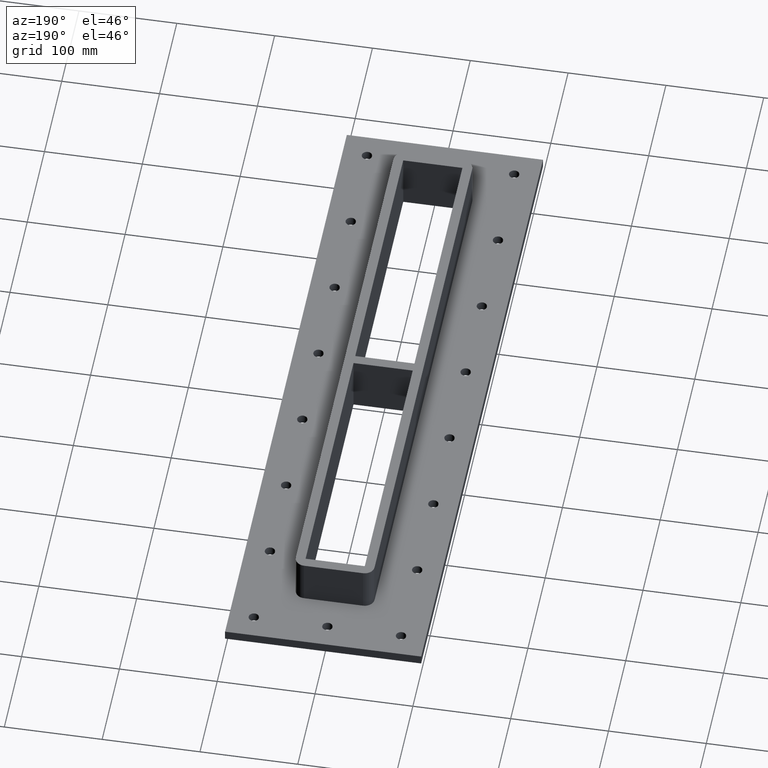
[diagram: clean part render]
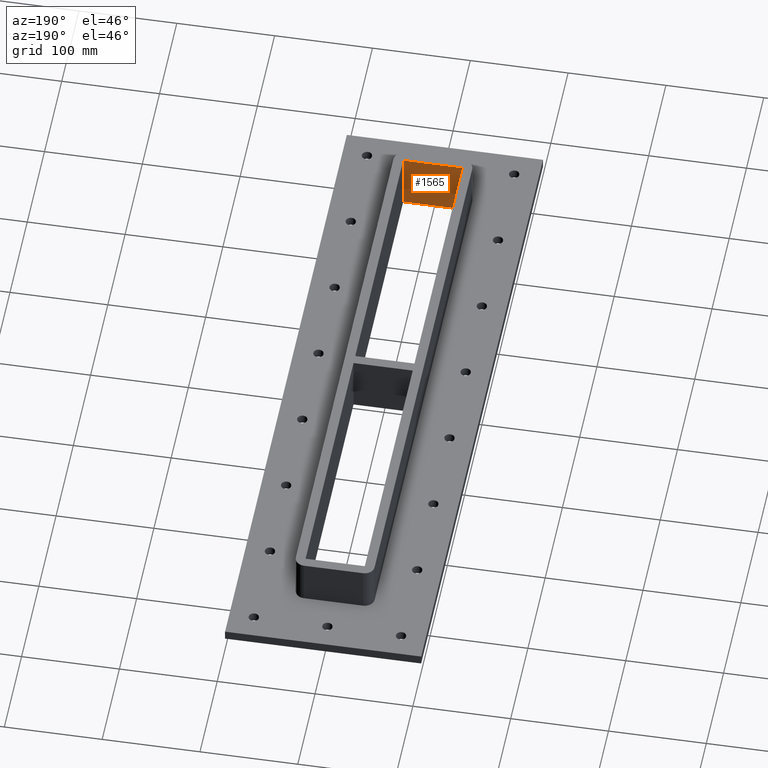
[diagram: same view with one face highlighted and labeled with its STEP entity id]
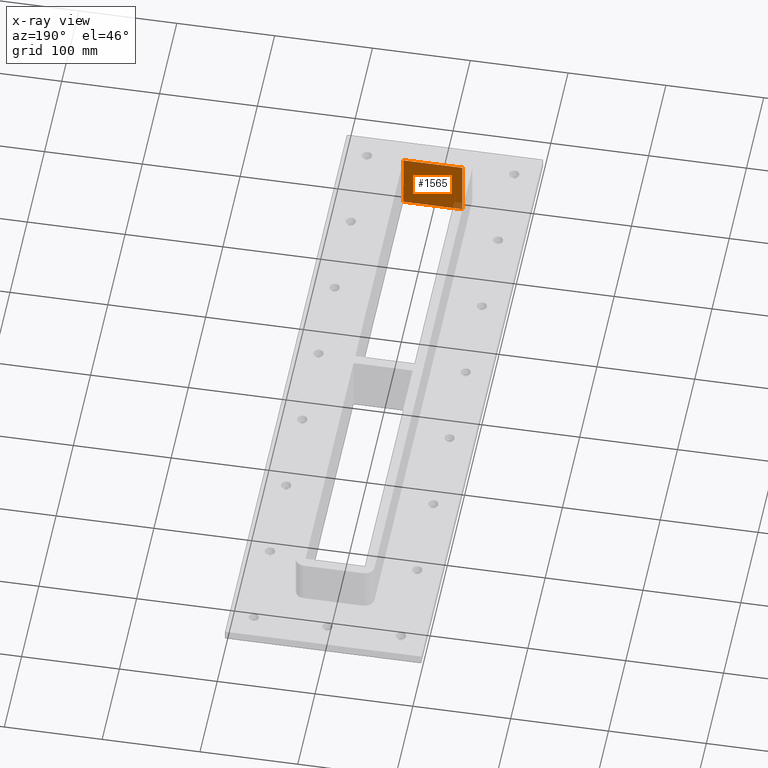
[diagram: x-ray of the same camera — body ghosted, the highlighted face saturated]
A machine part, auxiliary view. The second image highlights one B-rep face of the part: STEP entity #1565.
The next image is the same camera in x-ray: the body ghosted, the highlighted face saturated — about 2% of this face is hidden behind the body in this view.
In plain terms, the highlighted planar face has unit normal (0, -1, 0).
Its self-contained STEP definition (entity closure, byte-faithful):
#1272=CARTESIAN_POINT('',(30.25000000000011,-283.00000000000006,-30.0));
#1273=VERTEX_POINT('',#1272);
#1290=CARTESIAN_POINT('',(-30.249999999999901,-283.00000000000011,-30.0));
#1291=VERTEX_POINT('',#1290);
#1298=CARTESIAN_POINT('',(-30.249999999999904,-283.00000000000011,-30.0));
#1299=DIRECTION('',(1.0,0.0,0.0));
#1300=VECTOR('',#1299,60.500000000000014);
#1301=LINE('',#1298,#1300);
#1302=EDGE_CURVE('',#1291,#1273,#1301,.T.);
#1525=CARTESIAN_POINT('',(-30.249999999999901,-283.00000000000011,30.0));
#1526=VERTEX_POINT('',#1525);
#1533=CARTESIAN_POINT('',(-30.249999999999901,-283.00000000000011,30.0));
#1534=DIRECTION('',(0.0,0.0,-1.0));
#1535=VECTOR('',#1534,60.0);
#1536=LINE('',#1533,#1535);
#1537=EDGE_CURVE('',#1526,#1291,#1536,.T.);
#1542=CARTESIAN_POINT('',(30.250000000000107,-283.00000000000006,30.0));
#1543=DIRECTION('',(0.0,-1.0,0.0));
#1544=DIRECTION('',(-1.0,0.0,0.0));
#1545=AXIS2_PLACEMENT_3D('',#1542,#1543,#1544);
#1546=PLANE('',#1545);
#1547=ORIENTED_EDGE('',*,*,#1302,.F.);
#1548=ORIENTED_EDGE('',*,*,#1537,.F.);
#1549=CARTESIAN_POINT('',(30.25000000000011,-283.00000000000006,30.0));
#1550=VERTEX_POINT('',#1549);
#1551=CARTESIAN_POINT('',(30.25000000000011,-283.00000000000011,30.0));
#1552=DIRECTION('',(-1.0,0.0,0.0));
#1553=VECTOR('',#1552,60.500000000000014);
#1554=LINE('',#1551,#1553);
#1555=EDGE_CURVE('',#1550,#1526,#1554,.T.);
#1556=ORIENTED_EDGE('',*,*,#1555,.F.);
#1557=CARTESIAN_POINT('',(30.25000000000011,-283.00000000000006,30.0));
#1558=DIRECTION('',(0.0,0.0,-1.0));
#1559=VECTOR('',#1558,60.0);
#1560=LINE('',#1557,#1559);
#1561=EDGE_CURVE('',#1550,#1273,#1560,.T.);
#1562=ORIENTED_EDGE('',*,*,#1561,.T.);
#1563=EDGE_LOOP('',(#1547,#1548,#1556,#1562));
#1564=FACE_OUTER_BOUND('',#1563,.T.);
#1565=ADVANCED_FACE('',(#1564),#1546,.F.);